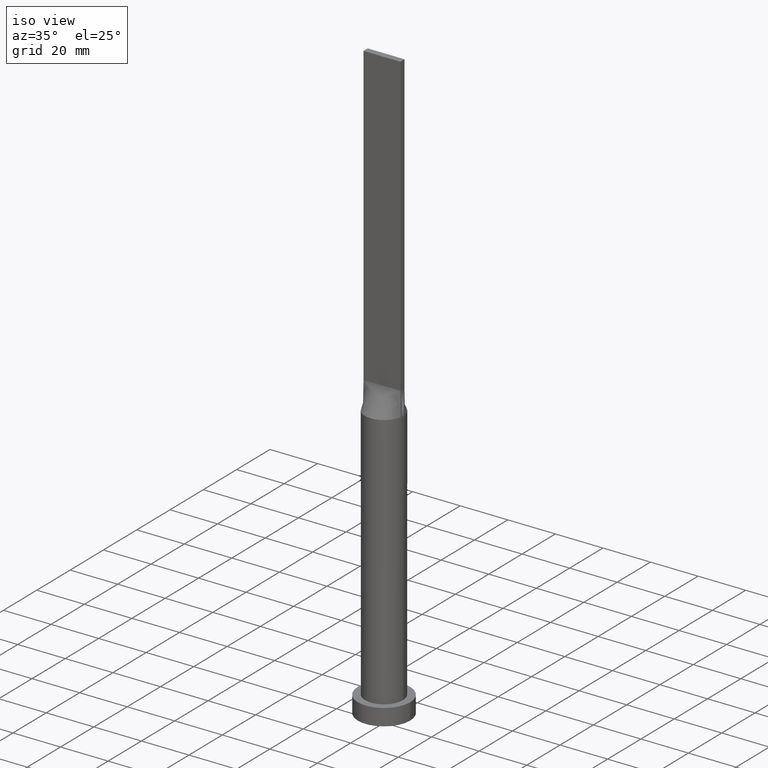
[diagram: clean part render]
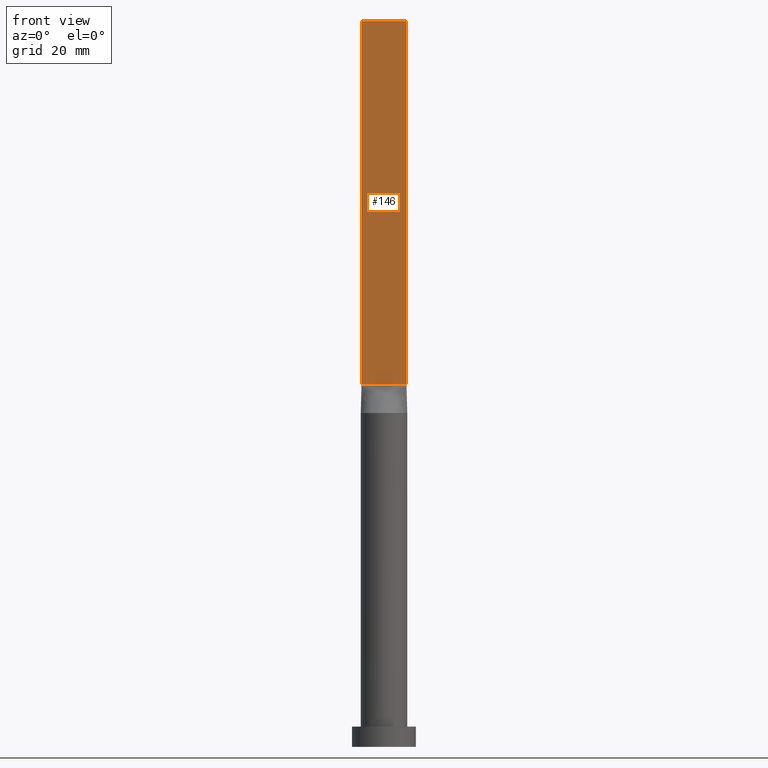
[diagram: tour spotlight — one face highlighted and labeled with its STEP entity id]
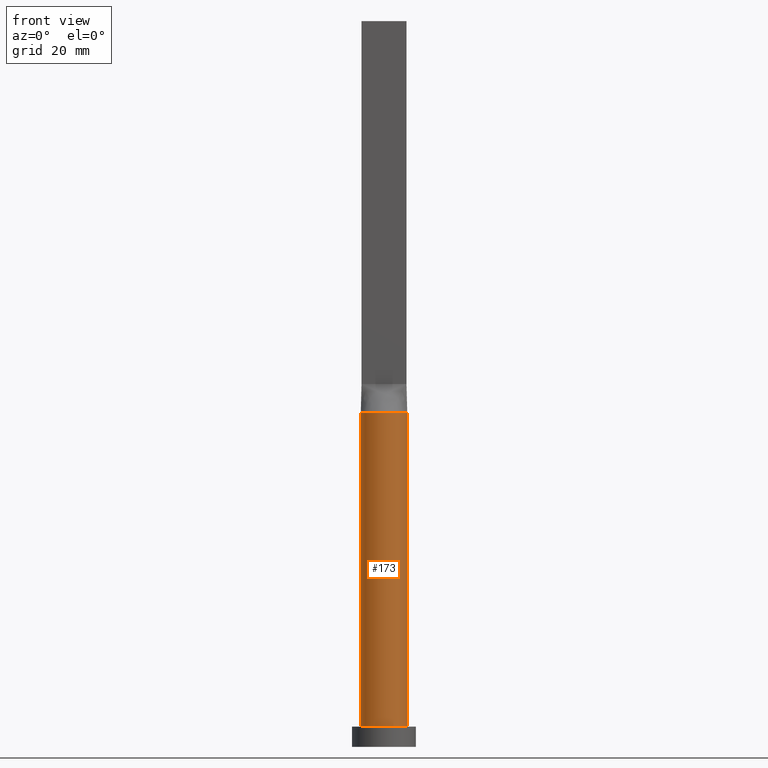
[diagram: tour spotlight — one face highlighted and labeled with its STEP entity id]
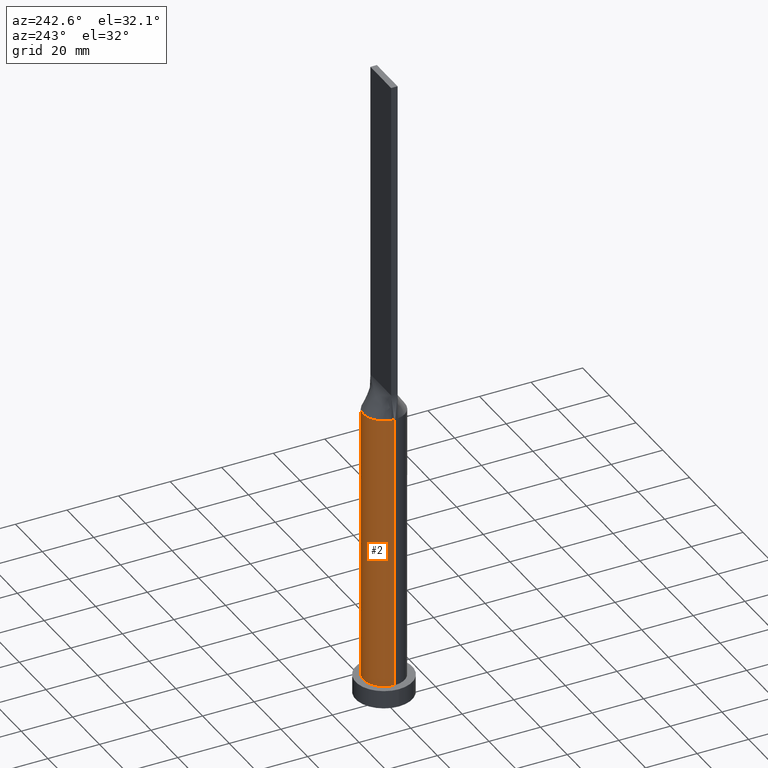
[diagram: tour spotlight — one face highlighted and labeled with its STEP entity id]
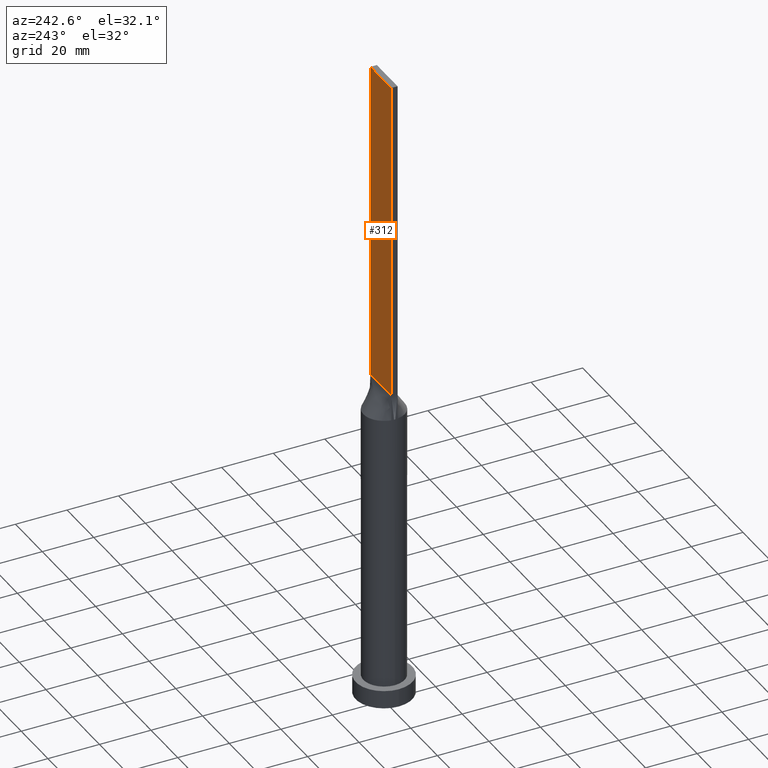
[diagram: tour spotlight — one face highlighted and labeled with its STEP entity id]
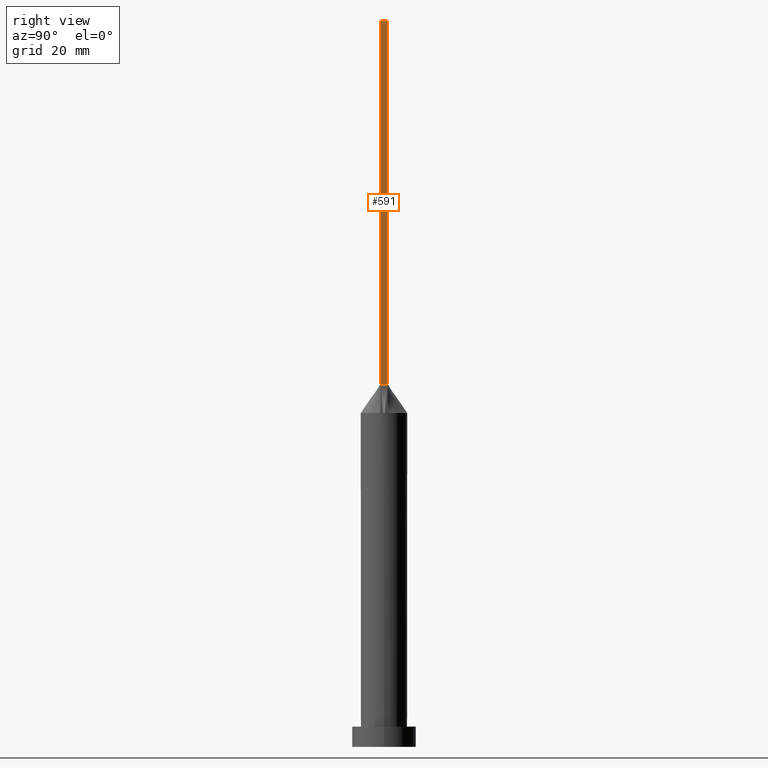
[diagram: tour spotlight — one face highlighted and labeled with its STEP entity id]
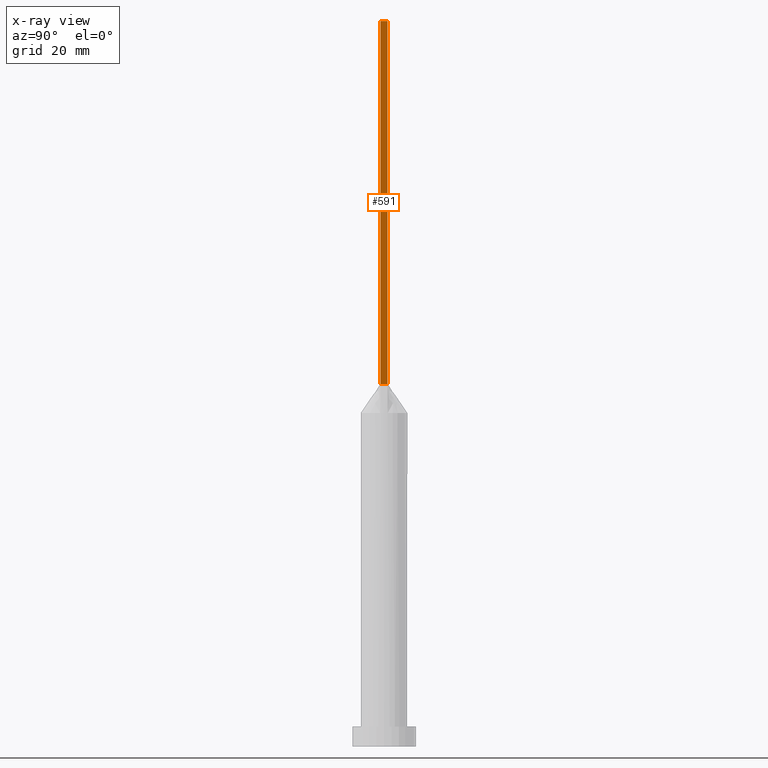
[diagram: x-ray of the same camera — body ghosted, this tour face saturated]
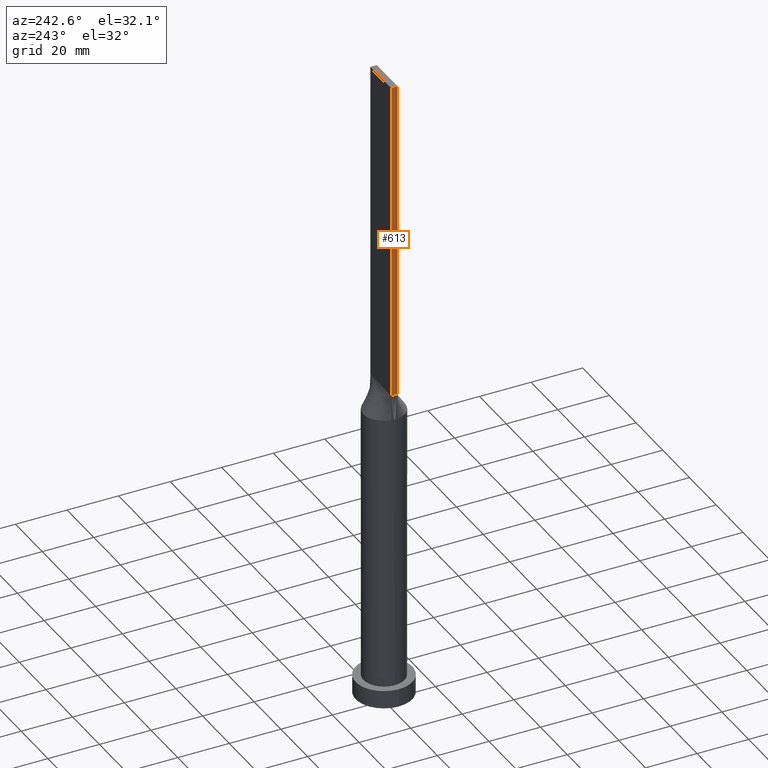
[diagram: tour spotlight — one face highlighted and labeled with its STEP entity id]
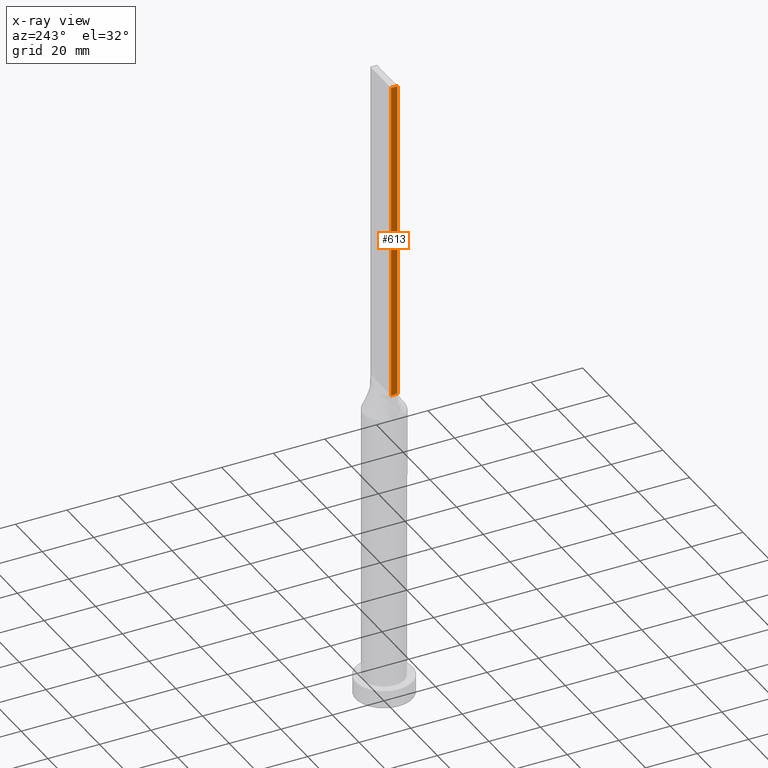
[diagram: x-ray of the same camera — body ghosted, this tour face saturated]
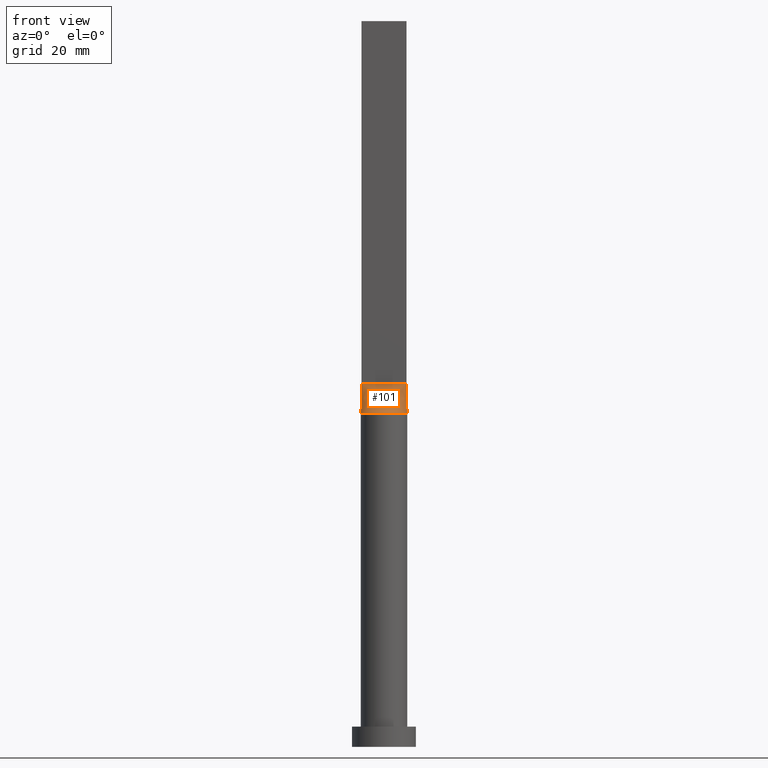
[diagram: tour spotlight — one face highlighted and labeled with its STEP entity id]
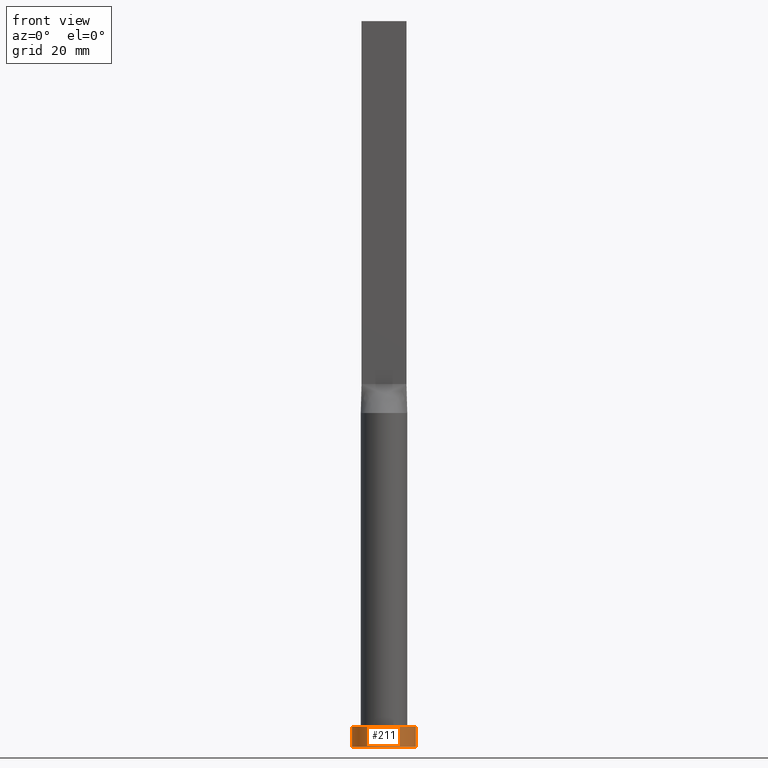
[diagram: tour spotlight — one face highlighted and labeled with its STEP entity id]
A machine part: a face-by-face anatomy tour. The part has 15 B-rep faces; the first image is the clean iso view, then the 8 largest visible faces are spotlighted one at a time (largest first), each with its STEP entity span.

Face 1 — front view, entity #146. In plain terms, the highlighted planar face has unit normal (0, 1, -0).
Definition (entity closure, byte-faithful):
#31 = LINE ( 'NONE', #472, #559 ) ;
#49 = EDGE_CURVE ( 'NONE', #537, #293, #502, .T. ) ;
#126 = ORIENTED_EDGE ( 'NONE', *, *, #498, .T. ) ;
#139 = DIRECTION ( 'NONE',  ( -0.000000000000000000, -0.000000000000000000, -1.000000000000000000 ) ) ;
#146 = ADVANCED_FACE ( 'NONE', ( #357 ), #501, .F. ) ;
#172 = DIRECTION ( 'NONE',  ( 5.595882180570345426E-17, 1.000000000000000000, -0.000000000000000000 ) ) ;
#187 = VECTOR ( 'NONE', #410, 1000.000000000000000 ) ;
#206 = CARTESIAN_POINT ( 'NONE',  ( -7.750000000000000000, -1.249999999999998890, 125.0000000000000000 ) ) ;
#213 = CARTESIAN_POINT ( 'NONE',  ( 7.750000000000000000, -1.249999999999999778, 250.0000000000000000 ) ) ;
#231 = AXIS2_PLACEMENT_3D ( 'NONE', #640, #172, #524 ) ;
#250 = VERTEX_POINT ( 'NONE', #206 ) ;
#287 = ORIENTED_EDGE ( 'NONE', *, *, #49, .F. ) ;
#288 = LINE ( 'NONE', #527, #380 ) ;
#293 = VERTEX_POINT ( 'NONE', #422 ) ;
#298 = DIRECTION ( 'NONE',  ( 1.000000000000000000, -5.595882180570345426E-17, 0.000000000000000000 ) ) ;
#304 = ORIENTED_EDGE ( 'NONE', *, *, #464, .T. ) ;
#327 = DIRECTION ( 'NONE',  ( 1.000000000000000000, -5.595882180570345426E-17, 0.000000000000000000 ) ) ;
#348 = CARTESIAN_POINT ( 'NONE',  ( -7.750000000000000000, -1.249999999999998890, 250.0000000000000000 ) ) ;
#350 = ORIENTED_EDGE ( 'NONE', *, *, #569, .F. ) ;
#357 = FACE_OUTER_BOUND ( 'NONE', #579, .T. ) ;
#380 = VECTOR ( 'NONE', #139, 1000.000000000000000 ) ;
#410 = DIRECTION ( 'NONE',  ( -0.000000000000000000, -0.000000000000000000, -1.000000000000000000 ) ) ;
#422 = CARTESIAN_POINT ( 'NONE',  ( 7.750000000000000000, -1.249999999999999778, 125.0000000000000000 ) ) ;
#464 = EDGE_CURVE ( 'NONE', #250, #293, #31, .T. ) ;
#472 = CARTESIAN_POINT ( 'NONE',  ( -7.750000000000000000, -1.249999999999998890, 125.0000000000000000 ) ) ;
#486 = CARTESIAN_POINT ( 'NONE',  ( 7.750000000000000000, -1.249999999999999778, 250.0000000000000000 ) ) ;
#494 = VERTEX_POINT ( 'NONE', #523 ) ;
#498 = EDGE_CURVE ( 'NONE', #494, #250, #288, .T. ) ;
#501 = PLANE ( 'NONE',  #231 ) ;
#502 = LINE ( 'NONE', #213, #187 ) ;
#510 = VECTOR ( 'NONE', #298, 1000.000000000000000 ) ;
#523 = CARTESIAN_POINT ( 'NONE',  ( -7.750000000000000000, -1.249999999999998890, 250.0000000000000000 ) ) ;
#524 = DIRECTION ( 'NONE',  ( -1.000000000000000000, 5.595882180570345426E-17, 0.000000000000000000 ) ) ;
#527 = CARTESIAN_POINT ( 'NONE',  ( -7.750000000000000000, -1.249999999999998890, 250.0000000000000000 ) ) ;
#537 = VERTEX_POINT ( 'NONE', #486 ) ;
#559 = VECTOR ( 'NONE', #327, 1000.000000000000000 ) ;
#569 = EDGE_CURVE ( 'NONE', #494, #537, #609, .T. ) ;
#579 = EDGE_LOOP ( 'NONE', ( #304, #287, #350, #126 ) ) ;
#609 = LINE ( 'NONE', #348, #510 ) ;
#640 = CARTESIAN_POINT ( 'NONE',  ( -7.750000000000000000, -1.249999999999998890, 250.0000000000000000 ) ) ;

Face 2 — front view, entity #173. In plain terms, the highlighted cylindrical surface (edge-blend (fillet) strip) has radius 8 mm, axis along (-0, -0, -1).
Definition (entity closure, byte-faithful):
#26 = CARTESIAN_POINT ( 'NONE',  ( 7.999674421998661522, 1.953788361903730848E-15, 115.0000000000000000 ) ) ;
#34 = CARTESIAN_POINT ( 'NONE',  ( 8.000000000000000000, 9.797174393178825657E-16, 115.0000000000000000 ) ) ;
#35 = DIRECTION ( 'NONE',  ( 0.000000000000000000, 0.000000000000000000, 1.000000000000000000 ) ) ;
#37 = ORIENTED_EDGE ( 'NONE', *, *, #164, .F. ) ;
#42 = VECTOR ( 'NONE', #463, 1000.000000000000000 ) ;
#63 = CIRCLE ( 'NONE', #319, 8.000000000000000000 ) ;
#79 = VERTEX_POINT ( 'NONE', #367 ) ;
#83 = ORIENTED_EDGE ( 'NONE', *, *, #265, .F. ) ;
#96 = EDGE_LOOP ( 'NONE', ( #634, #37, #471, #83, #490, #442 ) ) ;
#108 = DIRECTION ( 'NONE',  ( 0.000000000000000000, 0.000000000000000000, 1.000000000000000000 ) ) ;
#122 = EDGE_CURVE ( 'NONE', #425, #143, #289, .T. ) ;
#140 = DIRECTION ( 'NONE',  ( -0.000000000000000000, -0.000000000000000000, -1.000000000000000000 ) ) ;
#143 = VERTEX_POINT ( 'NONE', #362 ) ;
#148 = VERTEX_POINT ( 'NONE', #26 ) ;
#164 = EDGE_CURVE ( 'NONE', #143, #148, #587, .T. ) ;
#171 = CARTESIAN_POINT ( 'NONE',  ( -8.000000000000000000, 0.000000000000000000, 115.0000000000000000 ) ) ;
#173 = ADVANCED_FACE ( 'NONE', ( #391 ), #190, .T. ) ;
#180 = LINE ( 'NONE', #34, #246 ) ;
#189 = CIRCLE ( 'NONE', #393, 8.000000000000000000 ) ;
#190 = CYLINDRICAL_SURFACE ( 'NONE', #409, 8.000000000000000000 ) ;
#202 = DIRECTION ( 'NONE',  ( 1.000000000000000000, 0.000000000000000000, 0.000000000000000000 ) ) ;
#220 = LINE ( 'NONE', #171, #42 ) ;
#246 = VECTOR ( 'NONE', #568, 1000.000000000000000 ) ;
#251 = DIRECTION ( 'NONE',  ( 0.000000000000000000, 0.000000000000000000, 1.000000000000000000 ) ) ;
#265 = EDGE_CURVE ( 'NONE', #79, #425, #189, .T. ) ;
#284 = CARTESIAN_POINT ( 'NONE',  ( -7.897940634034629426, -1.273861398824698732, 115.0000000000000000 ) ) ;
#289 = CIRCLE ( 'NONE', #341, 8.000000000000000000 ) ;
#305 = EDGE_CURVE ( 'NONE', #79, #476, #220, .T. ) ;
#319 = AXIS2_PLACEMENT_3D ( 'NONE', #536, #251, #631 ) ;
#341 = AXIS2_PLACEMENT_3D ( 'NONE', #454, #108, #202 ) ;
#345 = DIRECTION ( 'NONE',  ( -1.000000000000000000, 0.000000000000000000, 0.000000000000000000 ) ) ;
#362 = CARTESIAN_POINT ( 'NONE',  ( 7.897952327758385849, -1.273863293446191536, 115.0000000000000000 ) ) ;
#366 = DIRECTION ( 'NONE',  ( 1.000000000000000000, 0.000000000000000000, 0.000000000000000000 ) ) ;
#367 = CARTESIAN_POINT ( 'NONE',  ( -7.999674421998661522, -1.996358676257538358E-15, 115.0000000000000000 ) ) ;
#391 = FACE_OUTER_BOUND ( 'NONE', #96, .T. ) ;
#393 = AXIS2_PLACEMENT_3D ( 'NONE', #469, #456, #366 ) ;
#406 = CARTESIAN_POINT ( 'NONE',  ( 0.000000000000000000, 0.000000000000000000, 115.0000000000000000 ) ) ;
#408 = EDGE_CURVE ( 'NONE', #148, #447, #180, .T. ) ;
#409 = AXIS2_PLACEMENT_3D ( 'NONE', #572, #140, #345 ) ;
#425 = VERTEX_POINT ( 'NONE', #284 ) ;
#442 = ORIENTED_EDGE ( 'NONE', *, *, #583, .T. ) ;
#447 = VERTEX_POINT ( 'NONE', #564 ) ;
#454 = CARTESIAN_POINT ( 'NONE',  ( 0.000000000000000000, 0.000000000000000000, 115.0000000000000000 ) ) ;
#456 = DIRECTION ( 'NONE',  ( 0.000000000000000000, 0.000000000000000000, 1.000000000000000000 ) ) ;
#463 = DIRECTION ( 'NONE',  ( -0.000000000000000000, -0.000000000000000000, -1.000000000000000000 ) ) ;
#469 = CARTESIAN_POINT ( 'NONE',  ( 0.000000000000000000, 0.000000000000000000, 115.0000000000000000 ) ) ;
#471 = ORIENTED_EDGE ( 'NONE', *, *, #122, .F. ) ;
#476 = VERTEX_POINT ( 'NONE', #615 ) ;
#490 = ORIENTED_EDGE ( 'NONE', *, *, #305, .T. ) ;
#517 = AXIS2_PLACEMENT_3D ( 'NONE', #406, #35, #619 ) ;
#536 = CARTESIAN_POINT ( 'NONE',  ( 0.000000000000000000, 0.000000000000000000, 7.000000000000000000 ) ) ;
#564 = CARTESIAN_POINT ( 'NONE',  ( 8.000000000000000000, 9.797174393178825657E-16, 7.000000000000000000 ) ) ;
#568 = DIRECTION ( 'NONE',  ( -0.000000000000000000, -0.000000000000000000, -1.000000000000000000 ) ) ;
#572 = CARTESIAN_POINT ( 'NONE',  ( 0.000000000000000000, 0.000000000000000000, 115.0000000000000000 ) ) ;
#583 = EDGE_CURVE ( 'NONE', #476, #447, #63, .T. ) ;
#587 = CIRCLE ( 'NONE', #517, 8.000000000000000000 ) ;
#615 = CARTESIAN_POINT ( 'NONE',  ( -8.000000000000000000, 0.000000000000000000, 7.000000000000000000 ) ) ;
#619 = DIRECTION ( 'NONE',  ( 1.000000000000000000, 1.776356839400250465E-15, 0.000000000000000000 ) ) ;
#631 = DIRECTION ( 'NONE',  ( 1.000000000000000000, 0.000000000000000000, 0.000000000000000000 ) ) ;
#634 = ORIENTED_EDGE ( 'NONE', *, *, #408, .F. ) ;

Face 3 — auxiliary view, entity #2. In plain terms, the highlighted cylindrical surface (edge-blend (fillet) strip) has radius 8 mm, axis along (-0, -0, -1).
Definition (entity closure, byte-faithful):
#1 = CARTESIAN_POINT ( 'NONE',  ( 7.897939137640443974, 1.273861156091724789, 115.0000000000000000 ) ) ;
#2 = ADVANCED_FACE ( 'NONE', ( #448 ), #259, .T. ) ;
#9 = CARTESIAN_POINT ( 'NONE',  ( 2.232993174580878204, 7.702525839322459156, 115.0000000000000142 ) ) ;
#11 = B_SPLINE_CURVE_WITH_KNOTS ( 'NONE', 3,
 ( #1, #13, #118, #459, #368, #590, #600, #513, #371, #411, #553, #317, #9, #125, #418, #546, #159, #65, #324, #549, #115, #277, #516, #313, #507, #121, #16, #67, #426, #270 ),
 .UNSPECIFIED., .F., .F.,
 ( 4, 2, 2, 2, 2, 2, 2, 2, 2, 2, 2, 2, 2, 2, 4 ),
 ( 0.000000000000000000, 0.1250000000000000000, 0.1875000000000000000, 0.2500000000000000000, 0.3125000000000000000, 0.3750000000000000000, 0.4375000000000000000, 0.5000000000000000000, 0.5625000000000000000, 0.6250000000000000000, 0.6875000000000000000, 0.7500000000000000000, 0.8125000000000000000, 0.8750000000000000000, 1.000000000000000000 ),
 .UNSPECIFIED. ) ;
#13 = CARTESIAN_POINT ( 'NONE',  ( 7.793128424795161990, 1.923622864214272088, 114.9999999999999858 ) ) ;
#16 = CARTESIAN_POINT ( 'NONE',  ( -7.088837466865208548, 3.729743859143727747, 114.9999999999999858 ) ) ;
#26 = CARTESIAN_POINT ( 'NONE',  ( 7.999674421998661522, 1.953788361903730848E-15, 115.0000000000000000 ) ) ;
#30 = ORIENTED_EDGE ( 'NONE', *, *, #81, .F. ) ;
#34 = CARTESIAN_POINT ( 'NONE',  ( 8.000000000000000000, 9.797174393178825657E-16, 115.0000000000000000 ) ) ;
#42 = VECTOR ( 'NONE', #463, 1000.000000000000000 ) ;
#57 = CARTESIAN_POINT ( 'NONE',  ( 0.000000000000000000, 0.000000000000000000, 7.000000000000000000 ) ) ;
#58 = DIRECTION ( 'NONE',  ( 0.000000000000000000, 0.000000000000000000, 1.000000000000000000 ) ) ;
#65 = CARTESIAN_POINT ( 'NONE',  ( -2.232993174580875539, 7.702525839322460044, 114.9999999999999858 ) ) ;
#67 = CARTESIAN_POINT ( 'NONE',  ( -7.597511974649647115, 2.632154125590751903, 114.9999999999999858 ) ) ;
#79 = VERTEX_POINT ( 'NONE', #367 ) ;
#81 = EDGE_CURVE ( 'NONE', #608, #79, #198, .T. ) ;
#115 = CARTESIAN_POINT ( 'NONE',  ( -4.217034177653714799, 6.817775467282660706, 115.0000000000000142 ) ) ;
#118 = CARTESIAN_POINT ( 'NONE',  ( 7.597511974649646227, 2.632154125590748350, 114.9999999999999574 ) ) ;
#121 = CARTESIAN_POINT ( 'NONE',  ( -6.883287261198669960, 4.100742229440782260, 115.0000000000000284 ) ) ;
#124 = CARTESIAN_POINT ( 'NONE',  ( -7.897950825069725234, 1.273863048877633020, 115.0000000000000000 ) ) ;
#125 = CARTESIAN_POINT ( 'NONE',  ( 1.135368687448996328, 7.938897956688654389, 114.9999999999999858 ) ) ;
#130 = DIRECTION ( 'NONE',  ( 0.000000000000000000, 0.000000000000000000, 1.000000000000000000 ) ) ;
#141 = AXIS2_PLACEMENT_3D ( 'NONE', #281, #130, #340 ) ;
#145 = ORIENTED_EDGE ( 'NONE', *, *, #421, .F. ) ;
#148 = VERTEX_POINT ( 'NONE', #26 ) ;
#159 = CARTESIAN_POINT ( 'NONE',  ( -1.135368687448994329, 7.938897956688654389, 114.9999999999999858 ) ) ;
#171 = CARTESIAN_POINT ( 'NONE',  ( -8.000000000000000000, 0.000000000000000000, 115.0000000000000000 ) ) ;
#177 = DIRECTION ( 'NONE',  ( 1.000000000000000000, 0.000000000000000000, 0.000000000000000000 ) ) ;
#180 = LINE ( 'NONE', #34, #246 ) ;
#188 = ORIENTED_EDGE ( 'NONE', *, *, #408, .T. ) ;
#198 = CIRCLE ( 'NONE', #445, 8.000000000000000000 ) ;
#215 = CARTESIAN_POINT ( 'NONE',  ( 7.897939137640443974, 1.273861156091724789, 115.0000000000000000 ) ) ;
#220 = LINE ( 'NONE', #171, #42 ) ;
#246 = VECTOR ( 'NONE', #568, 1000.000000000000000 ) ;
#259 = CYLINDRICAL_SURFACE ( 'NONE', #621, 8.000000000000000000 ) ;
#261 = DIRECTION ( 'NONE',  ( 0.000000000000000000, 0.000000000000000000, 1.000000000000000000 ) ) ;
#266 = AXIS2_PLACEMENT_3D ( 'NONE', #57, #261, #177 ) ;
#270 = CARTESIAN_POINT ( 'NONE',  ( -7.897950825069725234, 1.273863048877633020, 115.0000000000000000 ) ) ;
#276 = VERTEX_POINT ( 'NONE', #215 ) ;
#277 = CARTESIAN_POINT ( 'NONE',  ( -5.056714967162549534, 6.220536417275851271, 115.0000000000000426 ) ) ;
#281 = CARTESIAN_POINT ( 'NONE',  ( 0.000000000000000000, 0.000000000000000000, 115.0000000000000000 ) ) ;
#297 = EDGE_CURVE ( 'NONE', #276, #608, #11, .T. ) ;
#305 = EDGE_CURVE ( 'NONE', #79, #476, #220, .T. ) ;
#313 = CARTESIAN_POINT ( 'NONE',  ( -6.100409024666552327, 5.197691498289451317, 115.0000000000000426 ) ) ;
#315 = DIRECTION ( 'NONE',  ( 1.000000000000000000, 0.000000000000000000, 0.000000000000000000 ) ) ;
#317 = CARTESIAN_POINT ( 'NONE',  ( 2.762781956618984847, 7.527418670504289366, 115.0000000000000000 ) ) ;
#324 = CARTESIAN_POINT ( 'NONE',  ( -2.762781956618985291, 7.527418670504290255, 115.0000000000000142 ) ) ;
#340 = DIRECTION ( 'NONE',  ( 1.000000000000000000, 0.000000000000000000, 0.000000000000000000 ) ) ;
#358 = CARTESIAN_POINT ( 'NONE',  ( 0.000000000000000000, 0.000000000000000000, 115.0000000000000000 ) ) ;
#364 = CARTESIAN_POINT ( 'NONE',  ( 0.000000000000000000, 0.000000000000000000, 115.0000000000000000 ) ) ;
#367 = CARTESIAN_POINT ( 'NONE',  ( -7.999674421998661522, -1.996358676257538358E-15, 115.0000000000000000 ) ) ;
#368 = CARTESIAN_POINT ( 'NONE',  ( 6.883287261198673512, 4.100742229440780484, 115.0000000000000142 ) ) ;
#371 = CARTESIAN_POINT ( 'NONE',  ( 5.056714967162550423, 6.220536417275850383, 115.0000000000000142 ) ) ;
#390 = EDGE_CURVE ( 'NONE', #447, #476, #470, .T. ) ;
#408 = EDGE_CURVE ( 'NONE', #148, #447, #180, .T. ) ;
#411 = CARTESIAN_POINT ( 'NONE',  ( 4.217034177653714799, 6.817775467282659818, 115.0000000000000000 ) ) ;
#418 = CARTESIAN_POINT ( 'NONE',  ( 0.5677556330368851434, 7.999999999999998224, 114.9999999999999858 ) ) ;
#421 = EDGE_CURVE ( 'NONE', #148, #276, #460, .T. ) ;
#426 = CARTESIAN_POINT ( 'NONE',  ( -7.793128424795161102, 1.923622864214273198, 115.0000000000000142 ) ) ;
#445 = AXIS2_PLACEMENT_3D ( 'NONE', #364, #58, #315 ) ;
#447 = VERTEX_POINT ( 'NONE', #564 ) ;
#448 = FACE_OUTER_BOUND ( 'NONE', #636, .T. ) ;
#453 = ORIENTED_EDGE ( 'NONE', *, *, #297, .F. ) ;
#459 = CARTESIAN_POINT ( 'NONE',  ( 7.088837466865212988, 3.729743859143727303, 115.0000000000000000 ) ) ;
#460 = CIRCLE ( 'NONE', #141, 8.000000000000000000 ) ;
#463 = DIRECTION ( 'NONE',  ( -0.000000000000000000, -0.000000000000000000, -1.000000000000000000 ) ) ;
#470 = CIRCLE ( 'NONE', #266, 8.000000000000000000 ) ;
#476 = VERTEX_POINT ( 'NONE', #615 ) ;
#507 = CARTESIAN_POINT ( 'NONE',  ( -6.389139692789916225, 4.834731051311460526, 115.0000000000000142 ) ) ;
#513 = CARTESIAN_POINT ( 'NONE',  ( 5.434261125067508580, 5.890653037160103800, 115.0000000000000426 ) ) ;
#516 = CARTESIAN_POINT ( 'NONE',  ( -5.434261125067506804, 5.890653037160105576, 115.0000000000000142 ) ) ;
#526 = ORIENTED_EDGE ( 'NONE', *, *, #390, .T. ) ;
#540 = DIRECTION ( 'NONE',  ( -1.000000000000000000, 0.000000000000000000, 0.000000000000000000 ) ) ;
#546 = CARTESIAN_POINT ( 'NONE',  ( -0.5677556330368852544, 7.999999999999998224, 114.9999999999999858 ) ) ;
#549 = CARTESIAN_POINT ( 'NONE',  ( -3.754841939107308235, 7.084924699190308317, 115.0000000000000000 ) ) ;
#553 = CARTESIAN_POINT ( 'NONE',  ( 3.754841939107309567, 7.084924699190306541, 115.0000000000000142 ) ) ;
#558 = ORIENTED_EDGE ( 'NONE', *, *, #305, .F. ) ;
#564 = CARTESIAN_POINT ( 'NONE',  ( 8.000000000000000000, 9.797174393178825657E-16, 7.000000000000000000 ) ) ;
#568 = DIRECTION ( 'NONE',  ( -0.000000000000000000, -0.000000000000000000, -1.000000000000000000 ) ) ;
#590 = CARTESIAN_POINT ( 'NONE',  ( 6.389139692789920666, 4.834731051311459638, 115.0000000000000426 ) ) ;
#600 = CARTESIAN_POINT ( 'NONE',  ( 6.100409024666552327, 5.197691498289451317, 115.0000000000000142 ) ) ;
#608 = VERTEX_POINT ( 'NONE', #124 ) ;
#615 = CARTESIAN_POINT ( 'NONE',  ( -8.000000000000000000, 0.000000000000000000, 7.000000000000000000 ) ) ;
#621 = AXIS2_PLACEMENT_3D ( 'NONE', #358, #641, #540 ) ;
#636 = EDGE_LOOP ( 'NONE', ( #145, #188, #526, #558, #30, #453 ) ) ;
#641 = DIRECTION ( 'NONE',  ( -0.000000000000000000, -0.000000000000000000, -1.000000000000000000 ) ) ;

Face 4 — auxiliary view, entity #312. In plain terms, the highlighted planar face has unit normal (0, -1, 0).
Definition (entity closure, byte-faithful):
#6 = PLANE ( 'NONE',  #361 ) ;
#24 = CARTESIAN_POINT ( 'NONE',  ( -7.750000000000000000, 1.250000000000000222, 250.0000000000000000 ) ) ;
#28 = VECTOR ( 'NONE', #505, 1000.000000000000000 ) ;
#39 = EDGE_CURVE ( 'NONE', #534, #179, #110, .T. ) ;
#88 = CARTESIAN_POINT ( 'NONE',  ( 7.750000000000000000, 1.250000000000000222, 250.0000000000000000 ) ) ;
#93 = CARTESIAN_POINT ( 'NONE',  ( -7.750000000000000000, 1.250000000000000222, 250.0000000000000000 ) ) ;
#110 = LINE ( 'NONE', #205, #28 ) ;
#112 = DIRECTION ( 'NONE',  ( 0.000000000000000000, -0.000000000000000000, -1.000000000000000000 ) ) ;
#133 = EDGE_LOOP ( 'NONE', ( #229, #429, #245, #176 ) ) ;
#136 = LINE ( 'NONE', #88, #412 ) ;
#165 = DIRECTION ( 'NONE',  ( 0.000000000000000000, -1.000000000000000000, 0.000000000000000000 ) ) ;
#176 = ORIENTED_EDGE ( 'NONE', *, *, #441, .T. ) ;
#179 = VERTEX_POINT ( 'NONE', #93 ) ;
#185 = LINE ( 'NONE', #24, #395 ) ;
#201 = VERTEX_POINT ( 'NONE', #295 ) ;
#205 = CARTESIAN_POINT ( 'NONE',  ( 7.750000000000000000, 1.250000000000000222, 250.0000000000000000 ) ) ;
#229 = ORIENTED_EDGE ( 'NONE', *, *, #401, .T. ) ;
#238 = DIRECTION ( 'NONE',  ( -1.000000000000000000, -0.000000000000000000, -0.000000000000000000 ) ) ;
#245 = ORIENTED_EDGE ( 'NONE', *, *, #39, .F. ) ;
#291 = LINE ( 'NONE', #533, #344 ) ;
#295 = CARTESIAN_POINT ( 'NONE',  ( 7.750000000000000000, 1.250000000000000222, 125.0000000000000000 ) ) ;
#312 = ADVANCED_FACE ( 'NONE', ( #605 ), #6, .F. ) ;
#333 = DIRECTION ( 'NONE',  ( -0.000000000000000000, -0.000000000000000000, -1.000000000000000000 ) ) ;
#344 = VECTOR ( 'NONE', #238, 1000.000000000000000 ) ;
#361 = AXIS2_PLACEMENT_3D ( 'NONE', #541, #165, #112 ) ;
#395 = VECTOR ( 'NONE', #333, 1000.000000000000000 ) ;
#401 = EDGE_CURVE ( 'NONE', #201, #582, #291, .T. ) ;
#412 = VECTOR ( 'NONE', #484, 1000.000000000000000 ) ;
#429 = ORIENTED_EDGE ( 'NONE', *, *, #474, .F. ) ;
#430 = CARTESIAN_POINT ( 'NONE',  ( 7.750000000000000000, 1.250000000000000222, 250.0000000000000000 ) ) ;
#441 = EDGE_CURVE ( 'NONE', #534, #201, #136, .T. ) ;
#474 = EDGE_CURVE ( 'NONE', #179, #582, #185, .T. ) ;
#484 = DIRECTION ( 'NONE',  ( -0.000000000000000000, -0.000000000000000000, -1.000000000000000000 ) ) ;
#505 = DIRECTION ( 'NONE',  ( -1.000000000000000000, 0.000000000000000000, 0.000000000000000000 ) ) ;
#533 = CARTESIAN_POINT ( 'NONE',  ( -7.750000000000000000, 1.250000000000000222, 125.0000000000000000 ) ) ;
#534 = VERTEX_POINT ( 'NONE', #430 ) ;
#541 = CARTESIAN_POINT ( 'NONE',  ( 7.750000000000000000, 1.250000000000000222, 250.0000000000000000 ) ) ;
#551 = CARTESIAN_POINT ( 'NONE',  ( -7.750000000000000000, 1.250000000000000222, 125.0000000000000000 ) ) ;
#582 = VERTEX_POINT ( 'NONE', #551 ) ;
#605 = FACE_OUTER_BOUND ( 'NONE', #133, .T. ) ;

Face 5 — right view, entity #591. An x-ray twin of the same camera follows (body ghosted, this face saturated) — the face is partly hidden behind the body. In plain terms, the highlighted planar face has unit normal (-1, 0, 0).
Definition (entity closure, byte-faithful):
#4 = VECTOR ( 'NONE', #415, 1000.000000000000000 ) ;
#32 = AXIS2_PLACEMENT_3D ( 'NONE', #356, #111, #106 ) ;
#49 = EDGE_CURVE ( 'NONE', #537, #293, #502, .T. ) ;
#88 = CARTESIAN_POINT ( 'NONE',  ( 7.750000000000000000, 1.250000000000000222, 250.0000000000000000 ) ) ;
#100 = ORIENTED_EDGE ( 'NONE', *, *, #518, .F. ) ;
#106 = DIRECTION ( 'NONE',  ( 0.000000000000000000, 0.000000000000000000, 1.000000000000000000 ) ) ;
#111 = DIRECTION ( 'NONE',  ( -1.000000000000000000, 0.000000000000000000, 0.000000000000000000 ) ) ;
#136 = LINE ( 'NONE', #88, #412 ) ;
#151 = PLANE ( 'NONE',  #32 ) ;
#184 = DIRECTION ( 'NONE',  ( 0.000000000000000000, 1.000000000000000000, 0.000000000000000000 ) ) ;
#187 = VECTOR ( 'NONE', #410, 1000.000000000000000 ) ;
#191 = VECTOR ( 'NONE', #184, 1000.000000000000000 ) ;
#196 = FACE_OUTER_BOUND ( 'NONE', #326, .T. ) ;
#201 = VERTEX_POINT ( 'NONE', #295 ) ;
#213 = CARTESIAN_POINT ( 'NONE',  ( 7.750000000000000000, -1.249999999999999778, 250.0000000000000000 ) ) ;
#230 = CARTESIAN_POINT ( 'NONE',  ( 7.750000000000000000, -1.249999999999999778, 250.0000000000000000 ) ) ;
#242 = LINE ( 'NONE', #230, #191 ) ;
#293 = VERTEX_POINT ( 'NONE', #422 ) ;
#295 = CARTESIAN_POINT ( 'NONE',  ( 7.750000000000000000, 1.250000000000000222, 125.0000000000000000 ) ) ;
#296 = ORIENTED_EDGE ( 'NONE', *, *, #49, .T. ) ;
#309 = LINE ( 'NONE', #504, #4 ) ;
#326 = EDGE_LOOP ( 'NONE', ( #483, #628, #100, #296 ) ) ;
#356 = CARTESIAN_POINT ( 'NONE',  ( 7.750000000000000000, -1.249999999999999778, 250.0000000000000000 ) ) ;
#382 = EDGE_CURVE ( 'NONE', #293, #201, #309, .T. ) ;
#410 = DIRECTION ( 'NONE',  ( -0.000000000000000000, -0.000000000000000000, -1.000000000000000000 ) ) ;
#412 = VECTOR ( 'NONE', #484, 1000.000000000000000 ) ;
#415 = DIRECTION ( 'NONE',  ( -0.000000000000000000, 1.000000000000000000, -0.000000000000000000 ) ) ;
#422 = CARTESIAN_POINT ( 'NONE',  ( 7.750000000000000000, -1.249999999999999778, 125.0000000000000000 ) ) ;
#430 = CARTESIAN_POINT ( 'NONE',  ( 7.750000000000000000, 1.250000000000000222, 250.0000000000000000 ) ) ;
#441 = EDGE_CURVE ( 'NONE', #534, #201, #136, .T. ) ;
#483 = ORIENTED_EDGE ( 'NONE', *, *, #382, .T. ) ;
#484 = DIRECTION ( 'NONE',  ( -0.000000000000000000, -0.000000000000000000, -1.000000000000000000 ) ) ;
#486 = CARTESIAN_POINT ( 'NONE',  ( 7.750000000000000000, -1.249999999999999778, 250.0000000000000000 ) ) ;
#502 = LINE ( 'NONE', #213, #187 ) ;
#504 = CARTESIAN_POINT ( 'NONE',  ( 7.750000000000000000, 1.250000000000000222, 125.0000000000000000 ) ) ;
#518 = EDGE_CURVE ( 'NONE', #537, #534, #242, .T. ) ;
#534 = VERTEX_POINT ( 'NONE', #430 ) ;
#537 = VERTEX_POINT ( 'NONE', #486 ) ;
#591 = ADVANCED_FACE ( 'NONE', ( #196 ), #151, .F. ) ;
#628 = ORIENTED_EDGE ( 'NONE', *, *, #441, .F. ) ;

Face 6 — auxiliary view, entity #613. An x-ray twin of the same camera follows (body ghosted, this face saturated) — the face is partly hidden behind the body. In plain terms, the highlighted planar face has unit normal (1, 0, -0).
Definition (entity closure, byte-faithful):
#24 = CARTESIAN_POINT ( 'NONE',  ( -7.750000000000000000, 1.250000000000000222, 250.0000000000000000 ) ) ;
#69 = ORIENTED_EDGE ( 'NONE', *, *, #474, .T. ) ;
#84 = DIRECTION ( 'NONE',  ( 0.000000000000000000, -1.000000000000000000, 0.000000000000000000 ) ) ;
#90 = DIRECTION ( 'NONE',  ( 0.000000000000000000, -1.000000000000000000, 0.000000000000000000 ) ) ;
#93 = CARTESIAN_POINT ( 'NONE',  ( -7.750000000000000000, 1.250000000000000222, 250.0000000000000000 ) ) ;
#103 = ORIENTED_EDGE ( 'NONE', *, *, #498, .F. ) ;
#132 = DIRECTION ( 'NONE',  ( -0.000000000000000000, 0.000000000000000000, -1.000000000000000000 ) ) ;
#139 = DIRECTION ( 'NONE',  ( -0.000000000000000000, -0.000000000000000000, -1.000000000000000000 ) ) ;
#175 = CARTESIAN_POINT ( 'NONE',  ( -7.750000000000000000, 1.250000000000000222, 250.0000000000000000 ) ) ;
#179 = VERTEX_POINT ( 'NONE', #93 ) ;
#185 = LINE ( 'NONE', #24, #395 ) ;
#206 = CARTESIAN_POINT ( 'NONE',  ( -7.750000000000000000, -1.249999999999998890, 125.0000000000000000 ) ) ;
#224 = FACE_OUTER_BOUND ( 'NONE', #577, .T. ) ;
#233 = VECTOR ( 'NONE', #90, 1000.000000000000000 ) ;
#236 = CARTESIAN_POINT ( 'NONE',  ( -7.750000000000000000, 1.250000000000000222, 250.0000000000000000 ) ) ;
#250 = VERTEX_POINT ( 'NONE', #206 ) ;
#282 = DIRECTION ( 'NONE',  ( 1.000000000000000000, 0.000000000000000000, -0.000000000000000000 ) ) ;
#288 = LINE ( 'NONE', #527, #380 ) ;
#302 = ORIENTED_EDGE ( 'NONE', *, *, #637, .F. ) ;
#332 = ORIENTED_EDGE ( 'NONE', *, *, #531, .T. ) ;
#333 = DIRECTION ( 'NONE',  ( -0.000000000000000000, -0.000000000000000000, -1.000000000000000000 ) ) ;
#380 = VECTOR ( 'NONE', #139, 1000.000000000000000 ) ;
#395 = VECTOR ( 'NONE', #333, 1000.000000000000000 ) ;
#413 = AXIS2_PLACEMENT_3D ( 'NONE', #175, #282, #132 ) ;
#435 = LINE ( 'NONE', #611, #604 ) ;
#446 = LINE ( 'NONE', #236, #233 ) ;
#474 = EDGE_CURVE ( 'NONE', #179, #582, #185, .T. ) ;
#494 = VERTEX_POINT ( 'NONE', #523 ) ;
#498 = EDGE_CURVE ( 'NONE', #494, #250, #288, .T. ) ;
#523 = CARTESIAN_POINT ( 'NONE',  ( -7.750000000000000000, -1.249999999999998890, 250.0000000000000000 ) ) ;
#527 = CARTESIAN_POINT ( 'NONE',  ( -7.750000000000000000, -1.249999999999998890, 250.0000000000000000 ) ) ;
#531 = EDGE_CURVE ( 'NONE', #582, #250, #435, .T. ) ;
#551 = CARTESIAN_POINT ( 'NONE',  ( -7.750000000000000000, 1.250000000000000222, 125.0000000000000000 ) ) ;
#577 = EDGE_LOOP ( 'NONE', ( #332, #103, #302, #69 ) ) ;
#582 = VERTEX_POINT ( 'NONE', #551 ) ;
#604 = VECTOR ( 'NONE', #84, 1000.000000000000000 ) ;
#607 = PLANE ( 'NONE',  #413 ) ;
#611 = CARTESIAN_POINT ( 'NONE',  ( -7.750000000000000000, 1.250000000000000222, 125.0000000000000000 ) ) ;
#613 = ADVANCED_FACE ( 'NONE', ( #224 ), #607, .F. ) ;
#637 = EDGE_CURVE ( 'NONE', #179, #494, #446, .T. ) ;

Face 7 — front view, entity #101. In plain terms, the highlighted face is a freeform B-spline surface patch.
Definition (entity closure, byte-faithful):
#18 = VECTOR ( 'NONE', #519, 1000.000000000000227 ) ;
#19 = CARTESIAN_POINT ( 'NONE',  ( -5.434261125067508580, -5.890653037160103800, 115.0000000000000426 ) ) ;
#23 = CARTESIAN_POINT ( 'NONE',  ( -3.229166666666670071, -1.249999999999998890, 125.0000000000000000 ) ) ;
#31 = LINE ( 'NONE', #472, #559 ) ;
#33 = CARTESIAN_POINT ( 'NONE',  ( -2.583333333333337034, -1.249999999999998890, 125.0000000000000000 ) ) ;
#36 = CARTESIAN_POINT ( 'NONE',  ( 5.166666666666665186, -1.249999999999999778, 125.0000000000000000 ) ) ;
#46 = CARTESIAN_POINT ( 'NONE',  ( 4.520833333333330373, -1.249999999999999778, 125.0000000000000000 ) ) ;
#51 = EDGE_LOOP ( 'NONE', ( #241, #567, #280, #488 ) ) ;
#66 = CARTESIAN_POINT ( 'NONE',  ( -7.793128424795161990, -1.923622864214270978, 114.9999999999999858 ) ) ;
#74 = CARTESIAN_POINT ( 'NONE',  ( -4.520833333333335702, -1.249999999999998890, 125.0000000000000000 ) ) ;
#78 = CARTESIAN_POINT ( 'NONE',  ( 2.762781956618983514, -7.527418670504290255, 115.0000000000000142 ) ) ;
#82 = CARTESIAN_POINT ( 'NONE',  ( 4.217034177653714799, -6.817775467282661594, 115.0000000000000142 ) ) ;
#86 = CARTESIAN_POINT ( 'NONE',  ( 5.056714967162549534, -6.220536417275852159, 115.0000000000000426 ) ) ;
#101 = ADVANCED_FACE ( 'NONE', ( #458 ), #444, .T. ) ;
#105 = CARTESIAN_POINT ( 'NONE',  ( -5.489583333333334814, -1.249999999999998890, 125.0000000000000000 ) ) ;
#108 = DIRECTION ( 'NONE',  ( 0.000000000000000000, 0.000000000000000000, 1.000000000000000000 ) ) ;
#122 = EDGE_CURVE ( 'NONE', #425, #143, #289, .T. ) ;
#123 = CARTESIAN_POINT ( 'NONE',  ( 5.434261125067507692, -5.890653037160105576, 115.0000000000000142 ) ) ;
#135 = CARTESIAN_POINT ( 'NONE',  ( -3.754841939107310456, -7.084924699190306541, 115.0000000000000142 ) ) ;
#143 = VERTEX_POINT ( 'NONE', #362 ) ;
#174 = CARTESIAN_POINT ( 'NONE',  ( -1.291666666666671182, -1.249999999999999112, 125.0000000000000000 ) ) ;
#178 = CARTESIAN_POINT ( 'NONE',  ( 0.5677556330368840332, -7.999999999999998224, 114.9999999999999858 ) ) ;
#182 = CARTESIAN_POINT ( 'NONE',  ( -2.762781956618986623, -7.527418670504289366, 115.0000000000000000 ) ) ;
#192 = CARTESIAN_POINT ( 'NONE',  ( 6.458333333333333037, -1.249999999999999778, 125.0000000000000000 ) ) ;
#197 = CARTESIAN_POINT ( 'NONE',  ( 7.104166666666666963, -1.249999999999999778, 125.0000000000000000 ) ) ;
#202 = DIRECTION ( 'NONE',  ( 1.000000000000000000, 0.000000000000000000, 0.000000000000000000 ) ) ;
#206 = CARTESIAN_POINT ( 'NONE',  ( -7.750000000000000000, -1.249999999999998890, 125.0000000000000000 ) ) ;
#208 = CARTESIAN_POINT ( 'NONE',  ( -7.104166666666667851, -1.249999999999998890, 125.0000000000000000 ) ) ;
#217 = CARTESIAN_POINT ( 'NONE',  ( 4.197916666666664298, -1.249999999999999778, 125.0000000000000000 ) ) ;
#223 = CARTESIAN_POINT ( 'NONE',  ( -5.056714967162550423, -6.220536417275850383, 115.0000000000000142 ) ) ;
#228 = CARTESIAN_POINT ( 'NONE',  ( 1.614583333333329040, -1.249999999999999334, 125.0000000000000000 ) ) ;
#235 = CARTESIAN_POINT ( 'NONE',  ( 2.232993174580876428, -7.702525839322460044, 114.9999999999999858 ) ) ;
#240 = CARTESIAN_POINT ( 'NONE',  ( 7.597511974649644451, -2.632154125590752347, 114.9999999999999858 ) ) ;
#241 = ORIENTED_EDGE ( 'NONE', *, *, #122, .T. ) ;
#249 = CARTESIAN_POINT ( 'NONE',  ( 7.750000000000000000, -1.249999999999999778, 125.0000000000000000 ) ) ;
#250 = VERTEX_POINT ( 'NONE', #206 ) ;
#268 = CARTESIAN_POINT ( 'NONE',  ( -7.597511974649646227, -2.632154125590747906, 114.9999999999999574 ) ) ;
#279 = CARTESIAN_POINT ( 'NONE',  ( -4.197916666666670515, -1.249999999999998890, 125.0000000000000000 ) ) ;
#280 = ORIENTED_EDGE ( 'NONE', *, *, #464, .F. ) ;
#284 = CARTESIAN_POINT ( 'NONE',  ( -7.897940634034629426, -1.273861398824698732, 115.0000000000000000 ) ) ;
#286 = CARTESIAN_POINT ( 'NONE',  ( -6.883287261198673512, -4.100742229440781372, 115.0000000000000142 ) ) ;
#289 = CIRCLE ( 'NONE', #341, 8.000000000000000000 ) ;
#293 = VERTEX_POINT ( 'NONE', #422 ) ;
#322 = CARTESIAN_POINT ( 'NONE',  ( 3.552083333333330373, -1.249999999999999778, 125.0000000000000000 ) ) ;
#327 = DIRECTION ( 'NONE',  ( 1.000000000000000000, -5.595882180570345426E-17, 0.000000000000000000 ) ) ;
#331 = CARTESIAN_POINT ( 'NONE',  ( -0.6458333333333378112, -1.249999999999999112, 125.0000000000000000 ) ) ;
#334 = CARTESIAN_POINT ( 'NONE',  ( -4.217034177653715687, -6.817775467282659818, 115.0000000000000000 ) ) ;
#336 = LINE ( 'NONE', #440, #18 ) ;
#338 = CARTESIAN_POINT ( 'NONE',  ( 0.6458333333333290405, -1.249999999999999112, 125.0000000000000000 ) ) ;
#341 = AXIS2_PLACEMENT_3D ( 'NONE', #454, #108, #202 ) ;
#355 = CARTESIAN_POINT ( 'NONE',  ( -7.088837466865212988, -3.729743859143725526, 115.0000000000000000 ) ) ;
#362 = CARTESIAN_POINT ( 'NONE',  ( 7.897952327758385849, -1.273863293446191536, 115.0000000000000000 ) ) ;
#369 = CARTESIAN_POINT ( 'NONE',  ( -6.458333333333333925, -1.249999999999998890, 125.0000000000000000 ) ) ;
#373 = CARTESIAN_POINT ( 'NONE',  ( 3.229166666666662966, -1.249999999999999778, 125.0000000000000000 ) ) ;
#376 = CARTESIAN_POINT ( 'NONE',  ( -3.552083333333336590, -1.249999999999998890, 125.0000000000000000 ) ) ;
#379 = CARTESIAN_POINT ( 'NONE',  ( -0.3229166666666710706, -1.249999999999999112, 125.0000000000000000 ) ) ;
#381 = CARTESIAN_POINT ( 'NONE',  ( 3.754841939107309123, -7.084924699190308317, 115.0000000000000000 ) ) ;
#385 = CARTESIAN_POINT ( 'NONE',  ( -1.614583333333337922, -1.249999999999999112, 125.0000000000000000 ) ) ;
#399 = CARTESIAN_POINT ( 'NONE',  ( 7.897928965701177084, -1.273859510596963451, 115.0000000000000000 ) ) ;
#422 = CARTESIAN_POINT ( 'NONE',  ( 7.750000000000000000, -1.249999999999999778, 125.0000000000000000 ) ) ;
#425 = VERTEX_POINT ( 'NONE', #284 ) ;
#428 = CARTESIAN_POINT ( 'NONE',  ( -2.232993174580879092, -7.702525839322459156, 115.0000000000000142 ) ) ;
#431 = EDGE_CURVE ( 'NONE', #143, #293, #477, .T. ) ;
#432 = CARTESIAN_POINT ( 'NONE',  ( 1.135368687448994107, -7.938897956688654389, 114.9999999999999858 ) ) ;
#439 = CARTESIAN_POINT ( 'NONE',  ( -5.166666666666668739, -1.249999999999998890, 125.0000000000000000 ) ) ;
#440 = CARTESIAN_POINT ( 'NONE',  ( -7.823964482850588986, -1.261929755298480726, 120.0000000000000000 ) ) ;
#444 = B_SPLINE_SURFACE_WITH_KNOTS ( 'NONE', 3, 1, ( 
 ( #599, #595 ),
 ( #66, #208 ),
 ( #268, #369 ),
 ( #355, #105 ),
 ( #286, #439 ),
 ( #480, #74 ),
 ( #475, #279 ),
 ( #19, #376 ),
 ( #223, #23 ),
 ( #334, #33 ),
 ( #135, #612 ),
 ( #182, #385 ),
 ( #428, #174 ),
 ( #566, #331 ),
 ( #562, #379 ),
 ( #178, #557 ),
 ( #432, #338 ),
 ( #235, #521 ),
 ( #78, #228 ),
 ( #381, #525 ),
 ( #82, #528 ),
 ( #86, #373 ),
 ( #123, #322 ),
 ( #514, #217 ),
 ( #627, #46 ),
 ( #451, #36 ),
 ( #632, #630 ),
 ( #240, #192 ),
 ( #620, #197 ),
 ( #399, #249 ) ),
 .UNSPECIFIED., .F., .F., .F.,
 ( 4, 2, 2, 2, 2, 2, 2, 2, 2, 2, 2, 2, 2, 2, 4 ),
 ( 2, 2 ),
 ( 0.000000000000000000, 0.1250000000000000000, 0.1875000000000000000, 0.2500000000000000000, 0.3125000000000000000, 0.3750000000000000000, 0.4375000000000000000, 0.5000000000000000000, 0.5625000000000000000, 0.6250000000000000000, 0.6875000000000000000, 0.7500000000000000000, 0.8125000000000000000, 0.8750000000000000000, 1.000000000000000000 ),
 ( 0.000000000000000000, 1.000000000000000000 ),
 .UNSPECIFIED. ) ;
#451 = CARTESIAN_POINT ( 'NONE',  ( 6.883287261198672624, -4.100742229440781372, 115.0000000000000284 ) ) ;
#454 = CARTESIAN_POINT ( 'NONE',  ( 0.000000000000000000, 0.000000000000000000, 115.0000000000000000 ) ) ;
#455 = EDGE_CURVE ( 'NONE', #250, #425, #336, .T. ) ;
#458 = FACE_OUTER_BOUND ( 'NONE', #51, .T. ) ;
#464 = EDGE_CURVE ( 'NONE', #250, #293, #31, .T. ) ;
#472 = CARTESIAN_POINT ( 'NONE',  ( -7.750000000000000000, -1.249999999999998890, 125.0000000000000000 ) ) ;
#475 = CARTESIAN_POINT ( 'NONE',  ( -6.100409024666552327, -5.197691498289450429, 115.0000000000000142 ) ) ;
#477 = LINE ( 'NONE', #530, #589 ) ;
#480 = CARTESIAN_POINT ( 'NONE',  ( -6.389139692789920666, -4.834731051311459638, 115.0000000000000426 ) ) ;
#488 = ORIENTED_EDGE ( 'NONE', *, *, #455, .T. ) ;
#514 = CARTESIAN_POINT ( 'NONE',  ( 6.100409024666552327, -5.197691498289451317, 115.0000000000000426 ) ) ;
#519 = DIRECTION ( 'NONE',  ( -0.01479123618026851987, -0.002385683254881925015, -0.9998877576246579801 ) ) ;
#521 = CARTESIAN_POINT ( 'NONE',  ( 1.291666666666662300, -1.249999999999999112, 125.0000000000000000 ) ) ;
#525 = CARTESIAN_POINT ( 'NONE',  ( 2.260416666666662522, -1.249999999999999334, 125.0000000000000000 ) ) ;
#528 = CARTESIAN_POINT ( 'NONE',  ( 2.583333333333329485, -1.249999999999999556, 125.0000000000000000 ) ) ;
#530 = CARTESIAN_POINT ( 'NONE',  ( 7.823964482850588986, -1.261929755298481393, 120.0000000000000000 ) ) ;
#557 = CARTESIAN_POINT ( 'NONE',  ( 0.3229166666666622998, -1.249999999999999112, 125.0000000000000000 ) ) ;
#559 = VECTOR ( 'NONE', #327, 1000.000000000000000 ) ;
#562 = CARTESIAN_POINT ( 'NONE',  ( -0.5677556330368861426, -7.999999999999998224, 114.9999999999999858 ) ) ;
#566 = CARTESIAN_POINT ( 'NONE',  ( -1.135368687448996994, -7.938897956688654389, 114.9999999999999858 ) ) ;
#567 = ORIENTED_EDGE ( 'NONE', *, *, #431, .T. ) ;
#589 = VECTOR ( 'NONE', #618, 1000.000000000000227 ) ;
#595 = CARTESIAN_POINT ( 'NONE',  ( -7.750000000000000000, -1.249999999999998890, 125.0000000000000000 ) ) ;
#599 = CARTESIAN_POINT ( 'NONE',  ( -7.897928965701177084, -1.273859510596962119, 115.0000000000000000 ) ) ;
#612 = CARTESIAN_POINT ( 'NONE',  ( -2.260416666666670960, -1.249999999999999112, 125.0000000000000000 ) ) ;
#618 = DIRECTION ( 'NONE',  ( -0.01479123618026851987, 0.002385683254881967950, 0.9998877576246579801 ) ) ;
#620 = CARTESIAN_POINT ( 'NONE',  ( 7.793128424795160214, -1.923622864214274086, 115.0000000000000142 ) ) ;
#627 = CARTESIAN_POINT ( 'NONE',  ( 6.389139692789917113, -4.834731051311460526, 115.0000000000000142 ) ) ;
#630 = CARTESIAN_POINT ( 'NONE',  ( 5.489583333333332149, -1.249999999999999778, 125.0000000000000000 ) ) ;
#632 = CARTESIAN_POINT ( 'NONE',  ( 7.088837466865208548, -3.729743859143727747, 114.9999999999999858 ) ) ;

Face 8 — front view, entity #211. In plain terms, the highlighted cylindrical surface (edge-blend (fillet) strip) has radius 11 mm, axis along (-0, -0, -1).
Definition (entity closure, byte-faithful):
#3 = CARTESIAN_POINT ( 'NONE',  ( -11.00000000000000000, 0.000000000000000000, 7.000000000000000000 ) ) ;
#15 = AXIS2_PLACEMENT_3D ( 'NONE', #85, #489, #351 ) ;
#21 = ORIENTED_EDGE ( 'NONE', *, *, #89, .T. ) ;
#38 = CARTESIAN_POINT ( 'NONE',  ( 0.000000000000000000, 0.000000000000000000, 7.000000000000000000 ) ) ;
#60 = DIRECTION ( 'NONE',  ( -0.000000000000000000, -0.000000000000000000, -1.000000000000000000 ) ) ;
#62 = LINE ( 'NONE', #3, #153 ) ;
#85 = CARTESIAN_POINT ( 'NONE',  ( 0.000000000000000000, 0.000000000000000000, 7.000000000000000000 ) ) ;
#89 = EDGE_CURVE ( 'NONE', #388, #468, #62, .T. ) ;
#107 = VECTOR ( 'NONE', #60, 1000.000000000000000 ) ;
#150 = VERTEX_POINT ( 'NONE', #487 ) ;
#153 = VECTOR ( 'NONE', #262, 1000.000000000000000 ) ;
#155 = AXIS2_PLACEMENT_3D ( 'NONE', #597, #209, #593 ) ;
#162 = CARTESIAN_POINT ( 'NONE',  ( -11.00000000000000000, 0.000000000000000000, 7.000000000000000000 ) ) ;
#199 = EDGE_LOOP ( 'NONE', ( #256, #254, #21, #403 ) ) ;
#207 = CIRCLE ( 'NONE', #155, 11.00000000000000000 ) ;
#209 = DIRECTION ( 'NONE',  ( 0.000000000000000000, 0.000000000000000000, 1.000000000000000000 ) ) ;
#211 = ADVANCED_FACE ( 'NONE', ( #575 ), #299, .T. ) ;
#254 = ORIENTED_EDGE ( 'NONE', *, *, #545, .F. ) ;
#256 = ORIENTED_EDGE ( 'NONE', *, *, #275, .F. ) ;
#262 = DIRECTION ( 'NONE',  ( -0.000000000000000000, -0.000000000000000000, -1.000000000000000000 ) ) ;
#264 = CARTESIAN_POINT ( 'NONE',  ( 11.00000000000000000, 1.347111479062088405E-15, 7.000000000000000000 ) ) ;
#275 = EDGE_CURVE ( 'NONE', #150, #532, #375, .T. ) ;
#299 = CYLINDRICAL_SURFACE ( 'NONE', #15, 11.00000000000000000 ) ;
#351 = DIRECTION ( 'NONE',  ( -1.000000000000000000, 0.000000000000000000, 0.000000000000000000 ) ) ;
#363 = EDGE_CURVE ( 'NONE', #468, #532, #207, .T. ) ;
#375 = LINE ( 'NONE', #264, #107 ) ;
#388 = VERTEX_POINT ( 'NONE', #162 ) ;
#403 = ORIENTED_EDGE ( 'NONE', *, *, #363, .T. ) ;
#438 = CARTESIAN_POINT ( 'NONE',  ( -11.00000000000000000, 0.000000000000000000, 0.000000000000000000 ) ) ;
#443 = DIRECTION ( 'NONE',  ( 0.000000000000000000, 0.000000000000000000, 1.000000000000000000 ) ) ;
#468 = VERTEX_POINT ( 'NONE', #438 ) ;
#487 = CARTESIAN_POINT ( 'NONE',  ( 11.00000000000000000, 1.347111479062088405E-15, 7.000000000000000000 ) ) ;
#489 = DIRECTION ( 'NONE',  ( -0.000000000000000000, -0.000000000000000000, -1.000000000000000000 ) ) ;
#500 = AXIS2_PLACEMENT_3D ( 'NONE', #38, #443, #623 ) ;
#532 = VERTEX_POINT ( 'NONE', #570 ) ;
#543 = CIRCLE ( 'NONE', #500, 11.00000000000000000 ) ;
#545 = EDGE_CURVE ( 'NONE', #388, #150, #543, .T. ) ;
#570 = CARTESIAN_POINT ( 'NONE',  ( 11.00000000000000000, 1.347111479062088405E-15, 0.000000000000000000 ) ) ;
#575 = FACE_OUTER_BOUND ( 'NONE', #199, .T. ) ;
#593 = DIRECTION ( 'NONE',  ( 1.000000000000000000, 0.000000000000000000, 0.000000000000000000 ) ) ;
#597 = CARTESIAN_POINT ( 'NONE',  ( 0.000000000000000000, 0.000000000000000000, 0.000000000000000000 ) ) ;
#623 = DIRECTION ( 'NONE',  ( 1.000000000000000000, 0.000000000000000000, 0.000000000000000000 ) ) ;